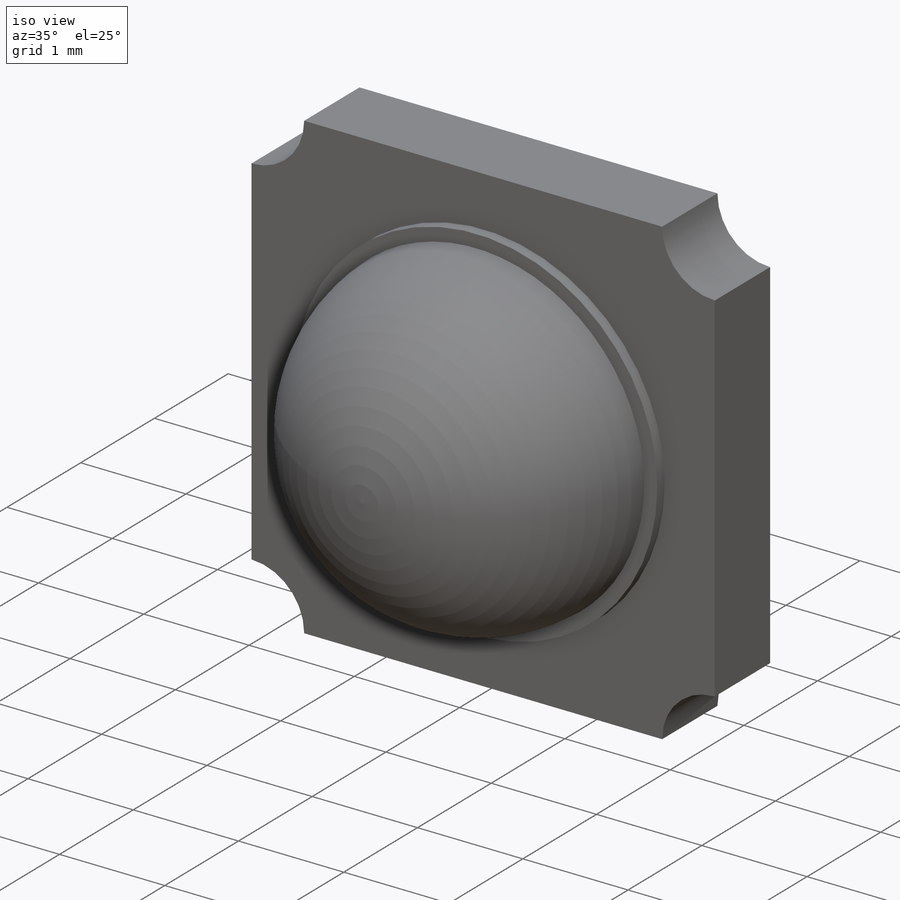
[diagram: iso view]
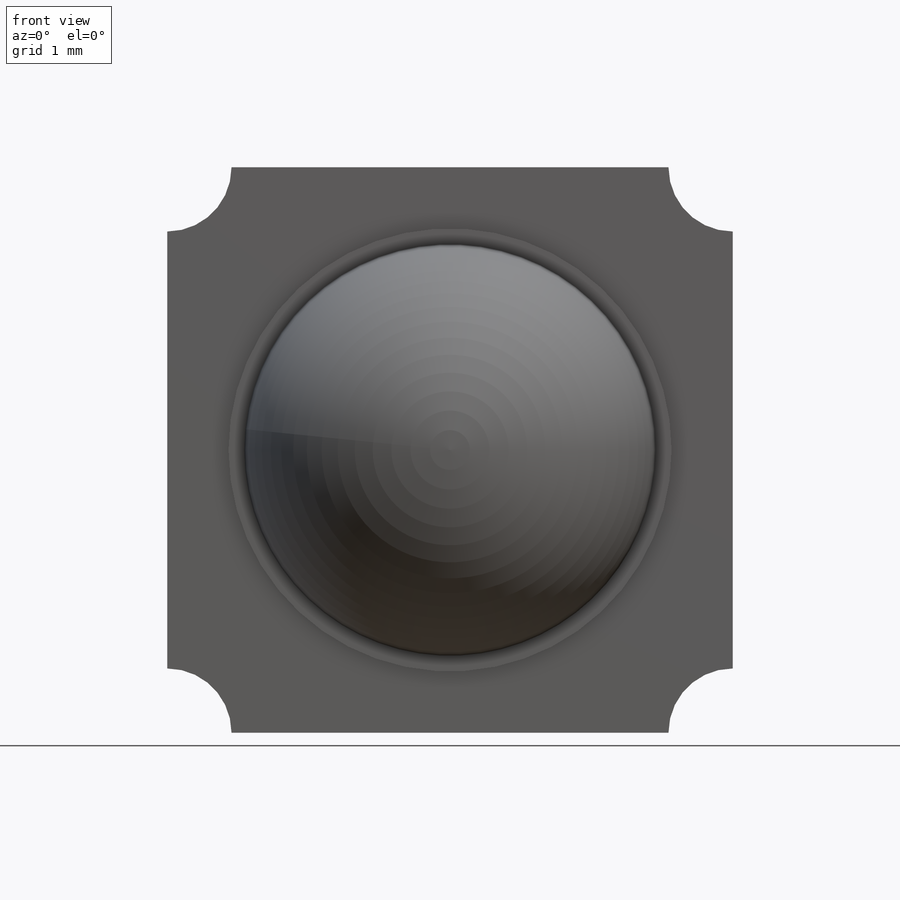
[diagram: front view]
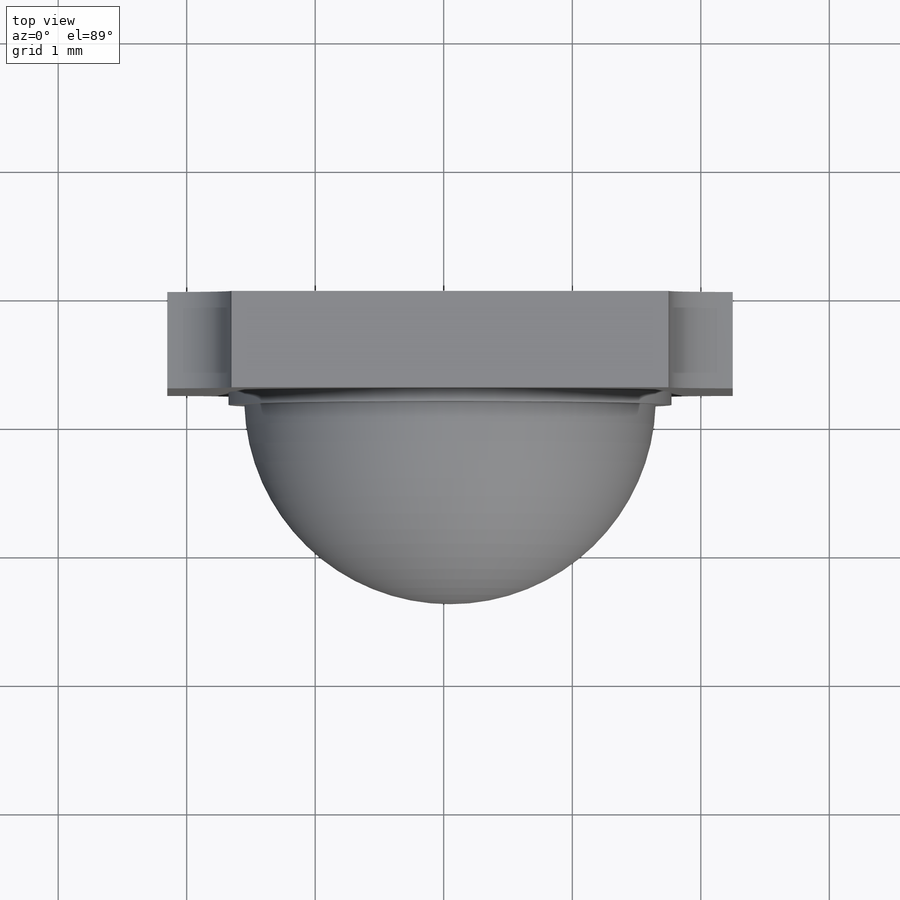
[diagram: top view]
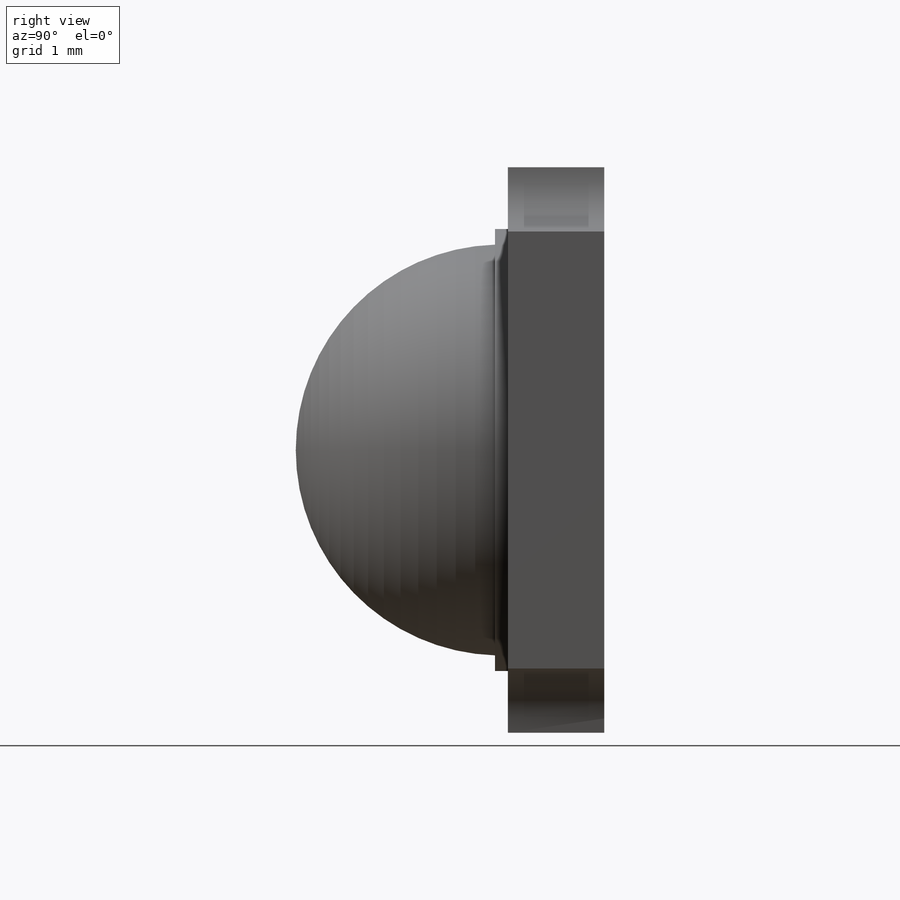
[diagram: right view]
SOLIDWORKS PART (.sldprt)
format: sldprt  version: not decoded by parser v0  size: 254,464 bytes
history: native  units: mm
features: sketch x5, plane x4, extrude x3, material x1, fillet x1 (+9 scaffold rows collapsed)
feature tree (23):
  scaffold x9  (default folders/planes/origin — collapsed)
  material  "ABS"
  plane  "Přední rovina"
  plane  "Horní rovina"
  plane  "Pravá rovina"
  sketch  "Skica1"  dims[D3=~0.513009mm D1=4.4mm D2=4.4mm]
  extrude  "Přidat vysunutím1"  Depth=0.75mm
  sketch  "Skica2"  dims[D1=~1.245933mm]
  sketch  "Skica4"
  extrude  "Přidat vysunutím3"  Depth=0.1mm
  sketch  "Skica5"  dims[D1=1.65mm]
  extrude  "Přidat vysunutím4"  Depth=1.65mm
  fillet  "Zaoblit7"  Radius=1.6mm
  plane  "Rovina1"  Offset=0mm
  sketch  "Skica6"
decode coverage: 7 of 9 modeling features carry decoded parameters
note: ~ marks probable driven/reference dimensions
note: suppression state not decoded; provenance and decode notes live in map.json
